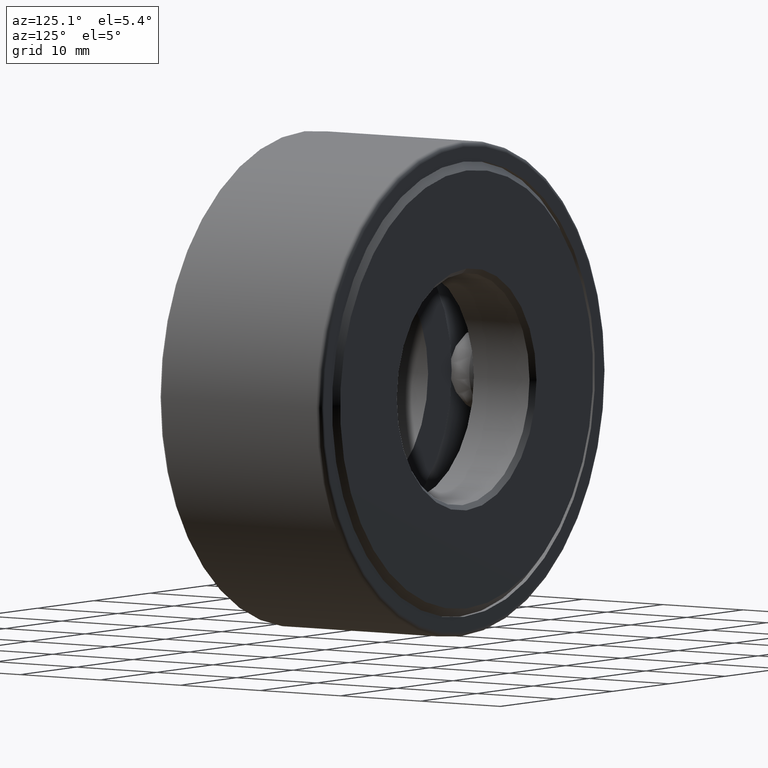
[diagram: clean part render]
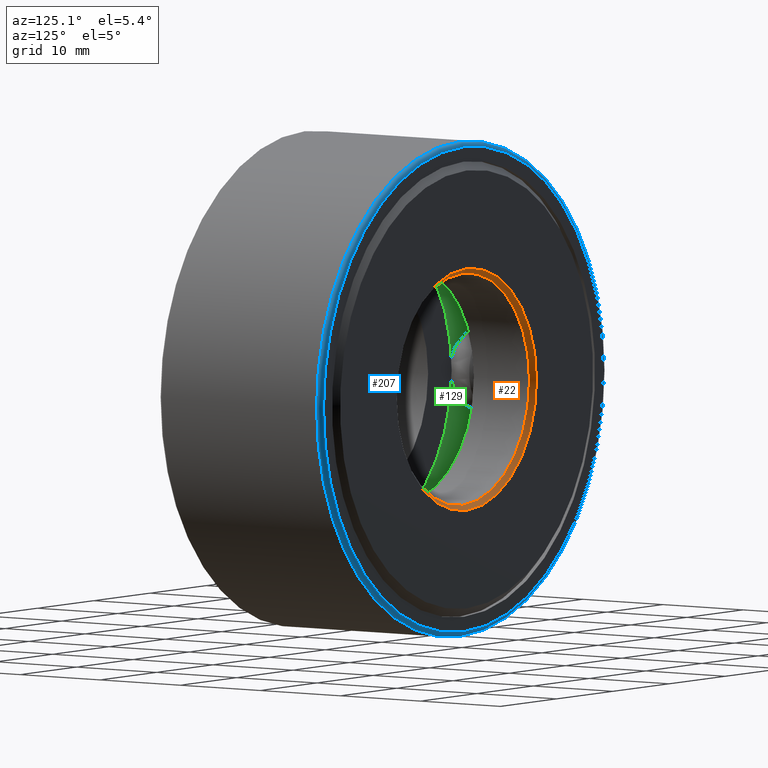
[diagram: same view with three faces highlighted in distinct colors, each labeled with its STEP entity id]
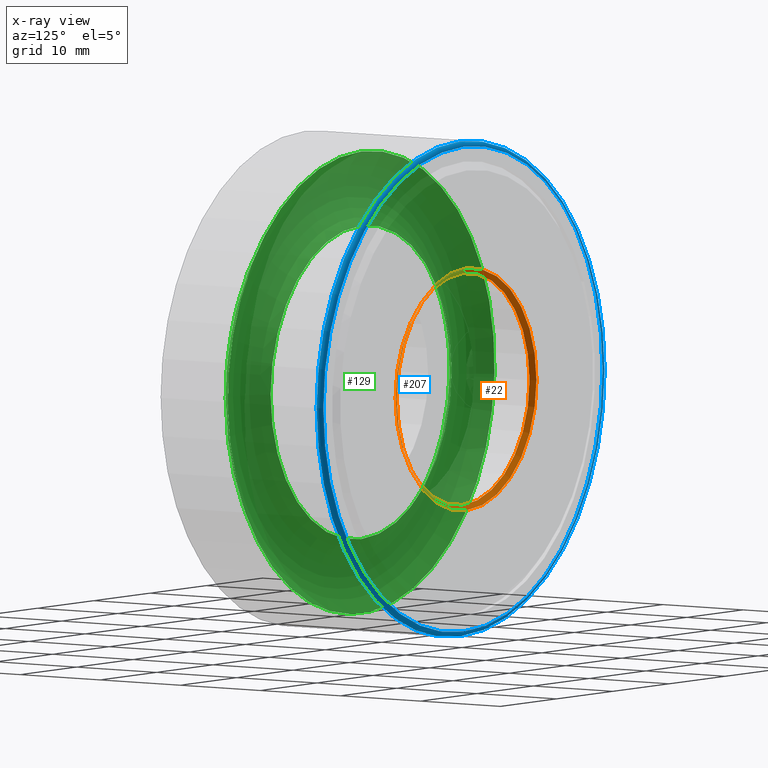
[diagram: x-ray of the same camera — body ghosted, the three highlighted faces saturated]
A machine part, auxiliary view with three faces highlighted in distinct colors.
The next image is the same camera in x-ray (body ghosted, the three faces saturated) — at least one of them is partly hidden behind the body in this view.
Their STEP definitions:

[orange] entity #22 — the highlighted conical surface has half-angle 45 deg.
#22 = ADVANCED_FACE ( 'NONE', ( #448, #260 ), #203, .F. ) ;
#63 = EDGE_CURVE ( 'NONE', #424, #424, #116, .T. ) ;
#80 = AXIS2_PLACEMENT_3D ( 'NONE', #355, #398, #495 ) ;
#98 = EDGE_LOOP ( 'NONE', ( #549 ) ) ;
#116 = CIRCLE ( 'NONE', #80, 0.4687500000000001100 ) ;
#150 = ORIENTED_EDGE ( 'NONE', *, *, #164, .T. ) ;
#164 = EDGE_CURVE ( 'NONE', #534, #534, #470, .T. ) ;
#172 = DIRECTION ( 'NONE',  ( -0.0000000000000000000, 1.000000000000000000, -0.0000000000000000000 ) ) ;
#173 = AXIS2_PLACEMENT_3D ( 'NONE', #450, #172, #587 ) ;
#203 = CONICAL_SURFACE ( 'NONE', #570, 0.4687500000000001100, 0.7853981633974482800 ) ;
#252 = CARTESIAN_POINT ( 'NONE',  ( 0.0000000000000000000, 0.7924999999999999800, 0.0000000000000000000 ) ) ;
#260 = FACE_BOUND ( 'NONE', #98, .T. ) ;
#311 = CARTESIAN_POINT ( 'NONE',  ( 0.0000000000000000000, 0.8125000000000000000, 0.4887500000000001300 ) ) ;
#355 = CARTESIAN_POINT ( 'NONE',  ( 0.0000000000000000000, 0.7924999999999999800, 0.0000000000000000000 ) ) ;
#398 = DIRECTION ( 'NONE',  ( -0.0000000000000000000, 1.000000000000000000, -0.0000000000000000000 ) ) ;
#424 = VERTEX_POINT ( 'NONE', #588 ) ;
#432 = DIRECTION ( 'NONE',  ( -0.0000000000000000000, 1.000000000000000000, -0.0000000000000000000 ) ) ;
#448 = FACE_OUTER_BOUND ( 'NONE', #571, .T. ) ;
#450 = CARTESIAN_POINT ( 'NONE',  ( 0.0000000000000000000, 0.8125000000000000000, 0.0000000000000000000 ) ) ;
#470 = CIRCLE ( 'NONE', #173, 0.4887500000000001300 ) ;
#495 = DIRECTION ( 'NONE',  ( 0.0000000000000000000, 0.0000000000000000000, 1.000000000000000000 ) ) ;
#534 = VERTEX_POINT ( 'NONE', #311 ) ;
#549 = ORIENTED_EDGE ( 'NONE', *, *, #63, .F. ) ;
#569 = DIRECTION ( 'NONE',  ( 0.0000000000000000000, 0.0000000000000000000, 1.000000000000000000 ) ) ;
#570 = AXIS2_PLACEMENT_3D ( 'NONE', #252, #432, #569 ) ;
#571 = EDGE_LOOP ( 'NONE', ( #150 ) ) ;
#587 = DIRECTION ( 'NONE',  ( 0.0000000000000000000, 0.0000000000000000000, 1.000000000000000000 ) ) ;
#588 = CARTESIAN_POINT ( 'NONE',  ( 0.0000000000000000000, 0.7924999999999999800, 0.4687500000000001100 ) ) ;

[blue] entity #207 — the highlighted toroidal blend (fillet) surface has major radius 24.892 mm and minor (blend) radius 0.508 mm.
#4 = CIRCLE ( 'NONE', #7, 0.9799999999999999800 ) ;
#7 = AXIS2_PLACEMENT_3D ( 'NONE', #463, #42, #561 ) ;
#31 = ORIENTED_EDGE ( 'NONE', *, *, #453, .F. ) ;
#42 = DIRECTION ( 'NONE',  ( -0.0000000000000000000, 1.000000000000000000, -0.0000000000000000000 ) ) ;
#68 = CIRCLE ( 'NONE', #239, 1.000000000000000000 ) ;
#69 = DIRECTION ( 'NONE',  ( -0.0000000000000000000, 1.000000000000000000, -0.0000000000000000000 ) ) ;
#207 = ADVANCED_FACE ( 'NONE', ( #257, #228 ), #340, .T. ) ;
#212 = VERTEX_POINT ( 'NONE', #447 ) ;
#224 = DIRECTION ( 'NONE',  ( 0.0000000000000000000, 0.0000000000000000000, 1.000000000000000000 ) ) ;
#228 = FACE_OUTER_BOUND ( 'NONE', #486, .T. ) ;
#236 = EDGE_LOOP ( 'NONE', ( #31 ) ) ;
#239 = AXIS2_PLACEMENT_3D ( 'NONE', #606, #597, #417 ) ;
#257 = FACE_OUTER_BOUND ( 'NONE', #236, .T. ) ;
#266 = EDGE_CURVE ( 'NONE', #540, #540, #68, .T. ) ;
#333 = ORIENTED_EDGE ( 'NONE', *, *, #266, .T. ) ;
#340 = TOROIDAL_SURFACE ( 'NONE', #386, 0.9799999999999999800, 0.02000000000000005900 ) ;
#386 = AXIS2_PLACEMENT_3D ( 'NONE', #504, #69, #224 ) ;
#417 = DIRECTION ( 'NONE',  ( 0.0000000000000000000, 0.0000000000000000000, 1.000000000000000000 ) ) ;
#447 = CARTESIAN_POINT ( 'NONE',  ( 0.0000000000000000000, 0.7974999999999998800, 0.9799999999999999800 ) ) ;
#453 = EDGE_CURVE ( 'NONE', #212, #212, #4, .T. ) ;
#463 = CARTESIAN_POINT ( 'NONE',  ( 0.0000000000000000000, 0.7974999999999998800, 0.0000000000000000000 ) ) ;
#486 = EDGE_LOOP ( 'NONE', ( #333 ) ) ;
#504 = CARTESIAN_POINT ( 'NONE',  ( 0.0000000000000000000, 0.7774999999999998600, 0.0000000000000000000 ) ) ;
#540 = VERTEX_POINT ( 'NONE', #593 ) ;
#561 = DIRECTION ( 'NONE',  ( 0.0000000000000000000, 0.0000000000000000000, 1.000000000000000000 ) ) ;
#593 = CARTESIAN_POINT ( 'NONE',  ( 0.0000000000000000000, 0.7774999999999998600, 1.000000000000000000 ) ) ;
#597 = DIRECTION ( 'NONE',  ( -0.0000000000000000000, 1.000000000000000000, -0.0000000000000000000 ) ) ;
#606 = CARTESIAN_POINT ( 'NONE',  ( 0.0000000000000000000, 0.7774999999999998600, 0.0000000000000000000 ) ) ;

[green] entity #129 — the highlighted toroidal blend (fillet) surface has major radius 19.9009 mm and minor (blend) radius 4.7625 mm.
#1 = DIRECTION ( 'NONE',  ( -0.0000000000000000000, 1.000000000000000000, -0.0000000000000000000 ) ) ;
#21 = DIRECTION ( 'NONE',  ( -0.0000000000000000000, 1.000000000000000000, -0.0000000000000000000 ) ) ;
#28 = DIRECTION ( 'NONE',  ( -0.0000000000000000000, 1.000000000000000000, -0.0000000000000000000 ) ) ;
#53 = ORIENTED_EDGE ( 'NONE', *, *, #238, .F. ) ;
#58 = VERTEX_POINT ( 'NONE', #177 ) ;
#61 = FACE_OUTER_BOUND ( 'NONE', #183, .T. ) ;
#70 = AXIS2_PLACEMENT_3D ( 'NONE', #275, #28, #132 ) ;
#76 = AXIS2_PLACEMENT_3D ( 'NONE', #465, #1, #422 ) ;
#129 = ADVANCED_FACE ( 'NONE', ( #61, #140 ), #215, .F. ) ;
#132 = DIRECTION ( 'NONE',  ( 0.0000000000000000000, 0.0000000000000000000, 1.000000000000000000 ) ) ;
#140 = FACE_OUTER_BOUND ( 'NONE', #390, .T. ) ;
#177 = CARTESIAN_POINT ( 'NONE',  ( 0.0000000000000000000, 0.2937500000000000100, 0.6334999999999999500 ) ) ;
#183 = EDGE_LOOP ( 'NONE', ( #53 ) ) ;
#198 = CIRCLE ( 'NONE', #70, 0.6334999999999999500 ) ;
#215 = TOROIDAL_SURFACE ( 'NONE', #295, 0.7834999999999999700, 0.1875000000000000600 ) ;
#222 = DIRECTION ( 'NONE',  ( 0.0000000000000000000, 0.0000000000000000000, 1.000000000000000000 ) ) ;
#238 = EDGE_CURVE ( 'NONE', #58, #58, #198, .T. ) ;
#244 = CIRCLE ( 'NONE', #76, 0.9335000000000000000 ) ;
#261 = VERTEX_POINT ( 'NONE', #498 ) ;
#275 = CARTESIAN_POINT ( 'NONE',  ( 0.0000000000000000000, 0.2937500000000000100, 0.0000000000000000000 ) ) ;
#295 = AXIS2_PLACEMENT_3D ( 'NONE', #582, #21, #222 ) ;
#390 = EDGE_LOOP ( 'NONE', ( #458 ) ) ;
#422 = DIRECTION ( 'NONE',  ( 0.0000000000000000000, 0.0000000000000000000, 1.000000000000000000 ) ) ;
#442 = EDGE_CURVE ( 'NONE', #261, #261, #244, .T. ) ;
#458 = ORIENTED_EDGE ( 'NONE', *, *, #442, .T. ) ;
#465 = CARTESIAN_POINT ( 'NONE',  ( 0.0000000000000000000, 0.2937499999999999600, 0.0000000000000000000 ) ) ;
#498 = CARTESIAN_POINT ( 'NONE',  ( 0.0000000000000000000, 0.2937499999999999600, 0.9335000000000000000 ) ) ;
#582 = CARTESIAN_POINT ( 'NONE',  ( 0.0000000000000000000, 0.4062500000000000000, 0.0000000000000000000 ) ) ;